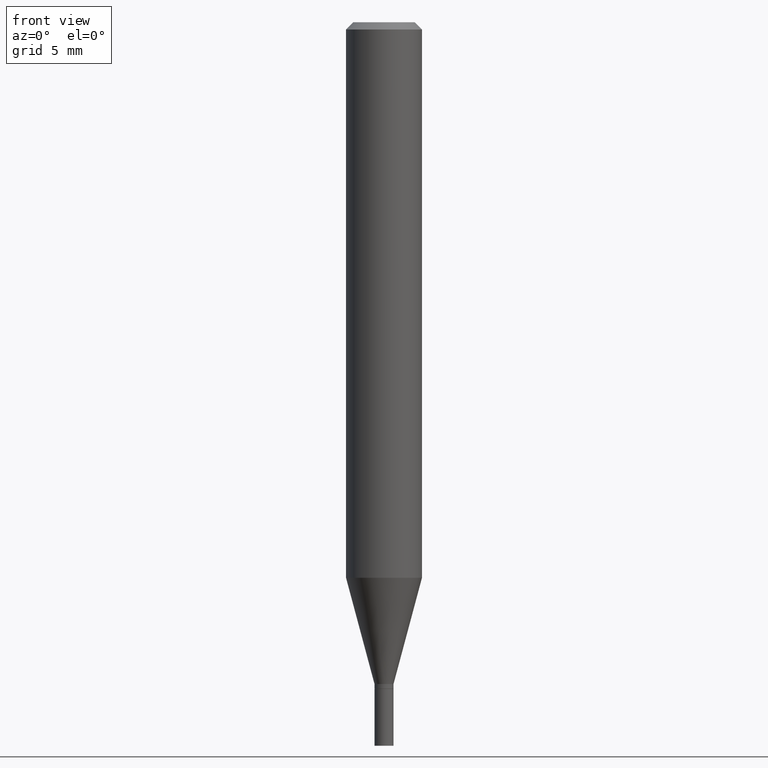
[diagram: clean part render]
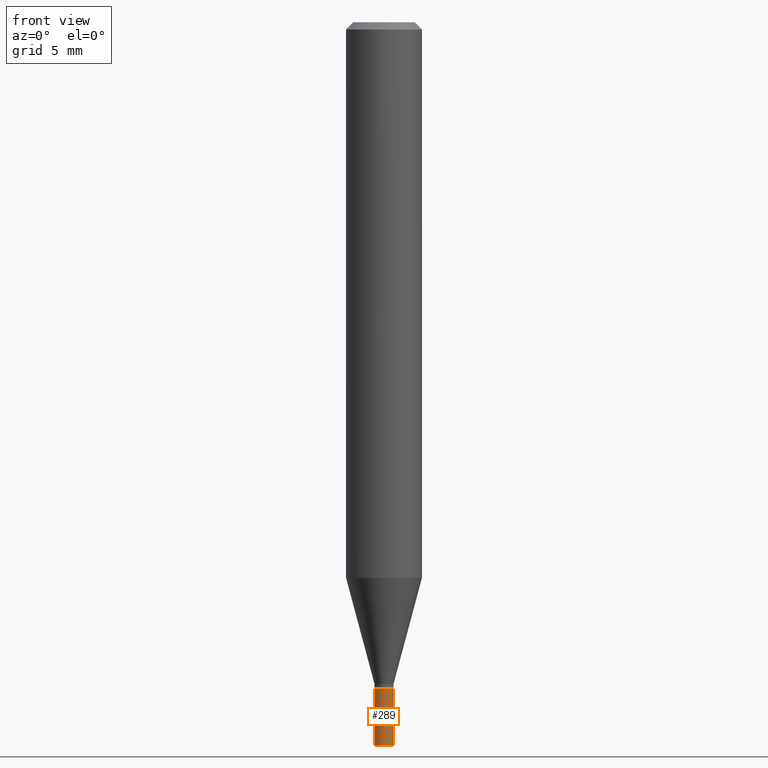
[diagram: same view with one face highlighted and labeled with its STEP entity id]
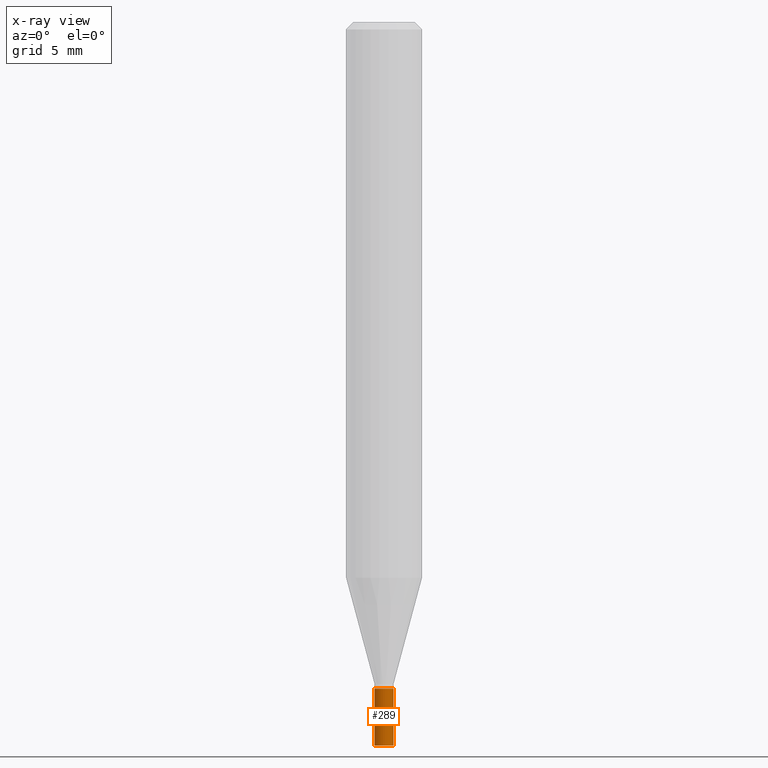
[diagram: x-ray of the same camera — body ghosted, the highlighted face saturated]
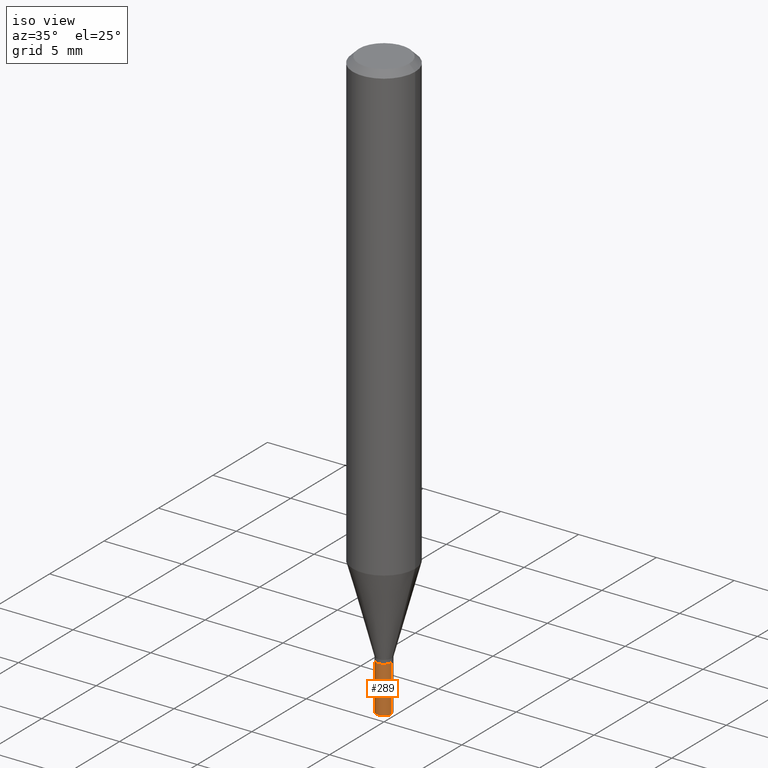
[diagram: same view with one face highlighted and labeled with its STEP entity id]
A machine part, front view. The second image highlights one B-rep face of the part: STEP entity #289.
The next image is the same camera in x-ray: the body ghosted, the highlighted face saturated — about 0% of this face is hidden behind the body in this view.
A second angle (iso view) of the same face is appended — the face is thin or edge-on in the first view.
In plain terms, the highlighted cylindrical surface (edge-blend (fillet) strip) has radius 0.5004 mm, axis along (-0, 0, 1).
Its self-contained STEP definition (entity closure, byte-faithful):
#16 = VERTEX_POINT ( 'NONE', #274 ) ;
#42 = DIRECTION ( 'NONE',  ( 1.000000000000000000, -6.982962677686265922E-15, 4.876176775795935232E-29 ) ) ;
#63 = CARTESIAN_POINT ( 'NONE',  ( 3.668203209277704895E-29, -5.237222008264718177E-15, -1.500000000000000222 ) ) ;
#65 = LINE ( 'NONE', #387, #422 ) ;
#78 = VERTEX_POINT ( 'NONE', #345 ) ;
#105 = VERTEX_POINT ( 'NONE', #314 ) ;
#107 = EDGE_CURVE ( 'NONE', #105, #368, #65, .T. ) ;
#133 = DIRECTION ( 'NONE',  ( -2.445468806185136597E-29, 3.491481338843145583E-15, 1.000000000000000000 ) ) ;
#147 = ORIENTED_EDGE ( 'NONE', *, *, #163, .F. ) ;
#163 = EDGE_CURVE ( 'NONE', #368, #78, #203, .T. ) ;
#170 = DIRECTION ( 'NONE',  ( 1.000000000000000000, -6.982962677686278543E-15, 0.000000000000000000 ) ) ;
#180 = CYLINDRICAL_SURFACE ( 'NONE', #421, 0.01969999999999999876 ) ;
#201 = VECTOR ( 'NONE', #442, 39.37007874015748143 ) ;
#203 = CIRCLE ( 'NONE', #281, 0.01969999999999999876 ) ;
#213 = DIRECTION ( 'NONE',  ( -2.445468806185136597E-29, 3.491481338843145583E-15, 1.000000000000000000 ) ) ;
#219 = FACE_OUTER_BOUND ( 'NONE', #228, .T. ) ;
#220 = ORIENTED_EDGE ( 'NONE', *, *, #249, .T. ) ;
#225 = CIRCLE ( 'NONE', #457, 0.01969999999999999876 ) ;
#228 = EDGE_LOOP ( 'NONE', ( #290, #220, #363, #147 ) ) ;
#248 = DIRECTION ( 'NONE',  ( -2.445468806185136877E-29, 3.491481338843145188E-15, 1.000000000000000000 ) ) ;
#249 = EDGE_CURVE ( 'NONE', #105, #16, #225, .T. ) ;
#274 = CARTESIAN_POINT ( 'NONE',  ( 0.01969999999999999876, -5.374786373015138180E-15, -1.500000000000000222 ) ) ;
#281 = AXIS2_PLACEMENT_3D ( 'NONE', #283, #133, #170 ) ;
#283 = CARTESIAN_POINT ( 'NONE',  ( 3.379393343267239894E-29, -4.824878062147343257E-15, -1.381900000000000128 ) ) ;
#289 = ADVANCED_FACE ( 'NONE', ( #219 ), #180, .T. ) ;
#290 = ORIENTED_EDGE ( 'NONE', *, *, #107, .F. ) ;
#296 = LINE ( 'NONE', #438, #201 ) ;
#299 = CARTESIAN_POINT ( 'NONE',  ( -0.01969999999999999876, -4.891073116261291013E-15, -1.381900000000000128 ) ) ;
#314 = CARTESIAN_POINT ( 'NONE',  ( -0.01969999999999999876, -4.891073116261291013E-15, -1.500000000000000222 ) ) ;
#325 = DIRECTION ( 'NONE',  ( -2.445468806185136597E-29, 3.491481338843145583E-15, 1.000000000000000000 ) ) ;
#345 = CARTESIAN_POINT ( 'NONE',  ( 0.01969999999999999876, -4.962442426897762471E-15, -1.381900000000000128 ) ) ;
#359 = DIRECTION ( 'NONE',  ( 1.000000000000000000, -6.982962677686278543E-15, 0.000000000000000000 ) ) ;
#363 = ORIENTED_EDGE ( 'NONE', *, *, #405, .T. ) ;
#368 = VERTEX_POINT ( 'NONE', #299 ) ;
#387 = CARTESIAN_POINT ( 'NONE',  ( -0.01969999999999999876, 1.399769189447397278E-16, -9.690302127802162501E-31 ) ) ;
#405 = EDGE_CURVE ( 'NONE', #16, #78, #296, .T. ) ;
#421 = AXIS2_PLACEMENT_3D ( 'NONE', #434, #325, #42 ) ;
#422 = VECTOR ( 'NONE', #248, 39.37007874015748143 ) ;
#434 = CARTESIAN_POINT ( 'NONE',  ( 0.000000000000000000, 0.000000000000000000, 0.000000000000000000 ) ) ;
#438 = CARTESIAN_POINT ( 'NONE',  ( 0.01969999999999999876, -1.375643647504194363E-16, 9.606068248317991466E-31 ) ) ;
#442 = DIRECTION ( 'NONE',  ( -2.445468806185136877E-29, 3.491481338843145188E-15, 1.000000000000000000 ) ) ;
#457 = AXIS2_PLACEMENT_3D ( 'NONE', #63, #213, #359 ) ;